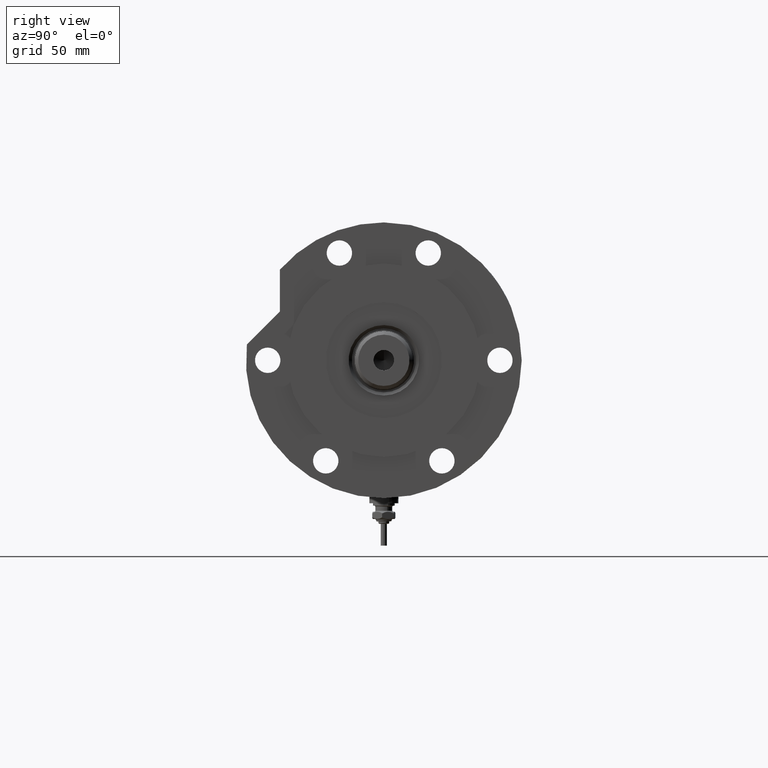
[diagram: clean part render]
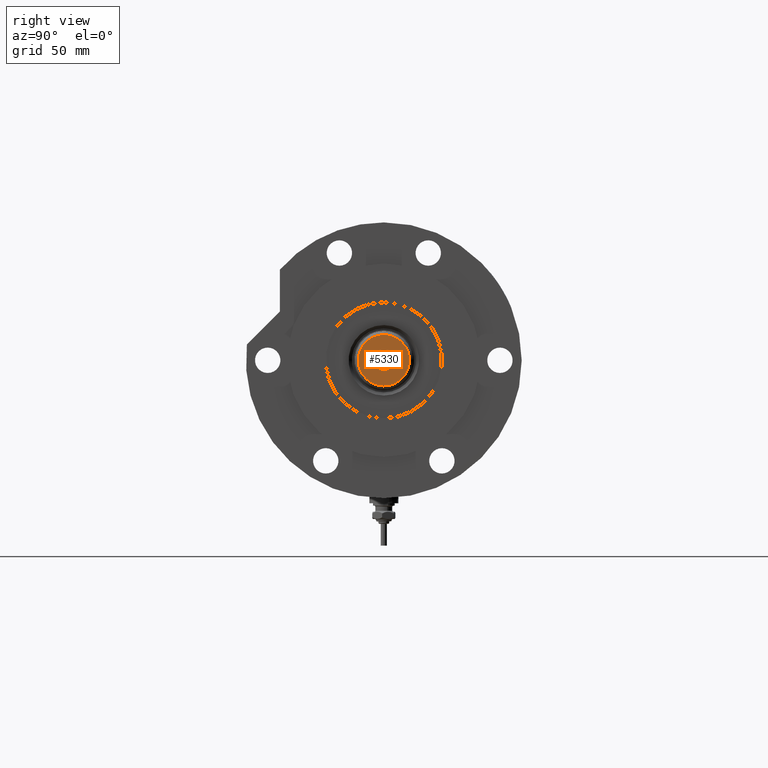
[diagram: same view with one face highlighted and labeled with its STEP entity id]
A machine part, right view. The second image highlights one B-rep face of the part: STEP entity #5330.
In plain terms, the highlighted planar face has unit normal (1, 0, -0).
Its self-contained STEP definition (entity closure, byte-faithful):
#201 = DIRECTION ( 'NONE',  ( 0.000000000000000000, 0.000000000000000000, 1.000000000000000000 ) ) ;
#299 = DIRECTION ( 'NONE',  ( 1.000000000000000000, 0.000000000000000000, 0.000000000000000000 ) ) ;
#496 = CIRCLE ( 'NONE', #3776, 10.59999999999999787 ) ;
#912 = DIRECTION ( 'NONE',  ( 1.000000000000000000, 0.000000000000000000, 0.000000000000000000 ) ) ;
#932 = EDGE_LOOP ( 'NONE', ( #7038, #3414 ) ) ;
#1072 = VERTEX_POINT ( 'NONE', #3933 ) ;
#1140 = VERTEX_POINT ( 'NONE', #5687 ) ;
#1454 = EDGE_LOOP ( 'NONE', ( #6770, #1809 ) ) ;
#1508 = DIRECTION ( 'NONE',  ( 0.000000000000000000, 0.000000000000000000, 1.000000000000000000 ) ) ;
#1809 = ORIENTED_EDGE ( 'NONE', *, *, #3204, .T. ) ;
#1966 = DIRECTION ( 'NONE',  ( 1.000000000000000000, 0.000000000000000000, 0.000000000000000000 ) ) ;
#2074 = DIRECTION ( 'NONE',  ( 0.000000000000000000, 0.000000000000000000, 1.000000000000000000 ) ) ;
#2237 = CIRCLE ( 'NONE', #4625, 4.249999999999997335 ) ;
#2239 = CARTESIAN_POINT ( 'NONE',  ( 0.000000000000000000, 0.000000000000000000, 207.6999999999999886 ) ) ;
#2266 = EDGE_CURVE ( 'NONE', #4762, #3143, #2237, .T. ) ;
#2373 = AXIS2_PLACEMENT_3D ( 'NONE', #4370, #1508, #912 ) ;
#2393 = DIRECTION ( 'NONE',  ( 1.000000000000000000, 0.000000000000000000, 0.000000000000000000 ) ) ;
#2517 = AXIS2_PLACEMENT_3D ( 'NONE', #4918, #5410, #299 ) ;
#2834 = FACE_BOUND ( 'NONE', #932, .T. ) ;
#3143 = VERTEX_POINT ( 'NONE', #6520 ) ;
#3204 = EDGE_CURVE ( 'NONE', #1140, #1072, #3919, .T. ) ;
#3236 = PLANE ( 'NONE',  #7340 ) ;
#3414 = ORIENTED_EDGE ( 'NONE', *, *, #7547, .F. ) ;
#3527 = EDGE_CURVE ( 'NONE', #1072, #1140, #496, .T. ) ;
#3595 = DIRECTION ( 'NONE',  ( -0.000000000000000000, -0.000000000000000000, 1.000000000000000000 ) ) ;
#3605 = FACE_OUTER_BOUND ( 'NONE', #1454, .T. ) ;
#3776 = AXIS2_PLACEMENT_3D ( 'NONE', #4298, #201, #1966 ) ;
#3919 = CIRCLE ( 'NONE', #2373, 10.59999999999999787 ) ;
#3933 = CARTESIAN_POINT ( 'NONE',  ( -10.59999999999999787, 0.000000000000000000, 207.6999999999999886 ) ) ;
#4298 = CARTESIAN_POINT ( 'NONE',  ( 0.000000000000000000, 0.000000000000000000, 207.6999999999999886 ) ) ;
#4370 = CARTESIAN_POINT ( 'NONE',  ( 0.000000000000000000, 0.000000000000000000, 207.6999999999999886 ) ) ;
#4625 = AXIS2_PLACEMENT_3D ( 'NONE', #7162, #3595, #2393 ) ;
#4762 = VERTEX_POINT ( 'NONE', #5824 ) ;
#4918 = CARTESIAN_POINT ( 'NONE',  ( 0.000000000000000000, 0.000000000000000000, 207.6999999999999886 ) ) ;
#5330 = ADVANCED_FACE ( 'NONE', ( #3605, #2834 ), #3236, .T. ) ;
#5410 = DIRECTION ( 'NONE',  ( -0.000000000000000000, -0.000000000000000000, 1.000000000000000000 ) ) ;
#5516 = CIRCLE ( 'NONE', #2517, 4.249999999999997335 ) ;
#5687 = CARTESIAN_POINT ( 'NONE',  ( 10.59999999999999787, 1.383850883036509067E-15, 207.6999999999999886 ) ) ;
#5824 = CARTESIAN_POINT ( 'NONE',  ( 4.249999999999997335, 0.000000000000000000, 207.6999999999999886 ) ) ;
#6122 = DIRECTION ( 'NONE',  ( 1.000000000000000000, 0.000000000000000000, -0.000000000000000000 ) ) ;
#6520 = CARTESIAN_POINT ( 'NONE',  ( -4.249999999999997335, 5.204748896376248727E-16, 207.6999999999999886 ) ) ;
#6770 = ORIENTED_EDGE ( 'NONE', *, *, #3527, .T. ) ;
#7038 = ORIENTED_EDGE ( 'NONE', *, *, #2266, .F. ) ;
#7162 = CARTESIAN_POINT ( 'NONE',  ( 0.000000000000000000, 0.000000000000000000, 207.6999999999999886 ) ) ;
#7340 = AXIS2_PLACEMENT_3D ( 'NONE', #2239, #2074, #6122 ) ;
#7547 = EDGE_CURVE ( 'NONE', #3143, #4762, #5516, .T. ) ;